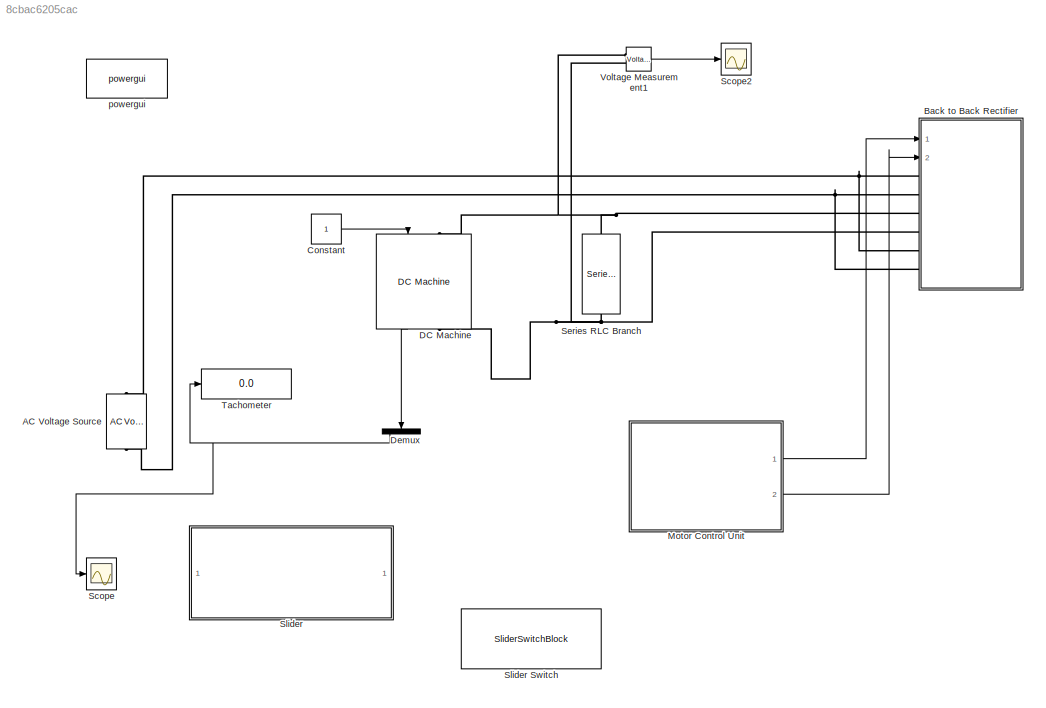
MODEL slx_8cbac6205cac
KIND model
CONFIG AbsTol = auto
CONFIG EnableMultiTasking = off
CONFIG FixedStep = 0.00001
CONFIG MaxStep = auto
CONFIG MinStep = auto
CONFIG RelTol = 1e-3
CONFIG SampleTimeConstraint = Unconstrained
CONFIG Solver = FixedStepDiscrete
CONFIG SolverName = FixedStepDiscrete
CONFIG StartTime = 0.0
CONFIG StopTime = 1000
BLOCK [Reference] AC Voltage Source  REF=powerlib/Electrical
Sources/AC Voltage Source
  Ports = [0, 0, 0, 0, 0, 1, 1]
  SourceBlock = powerlib/Electrical\nSources/AC Voltage Source
  SourceProductBaseCode = PS
  SourceProductName = Simscape Power Systems
  SourceType = AC Voltage Source
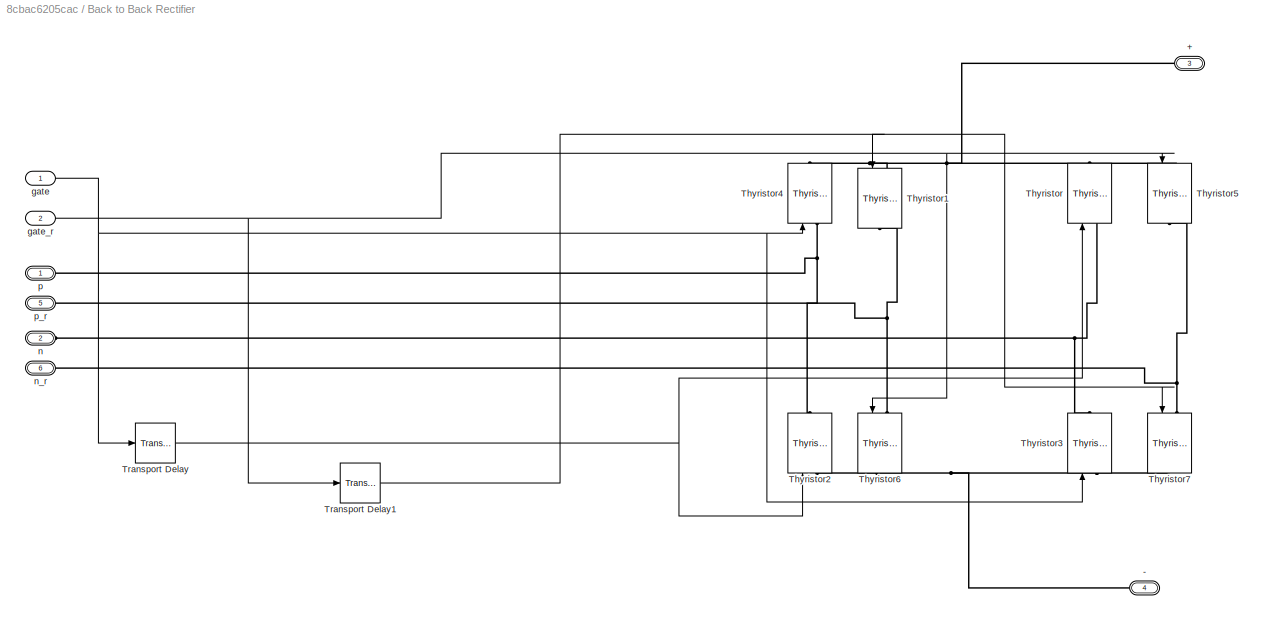
BLOCK [SubSystem] Back to Back Rectifier
  Ports = [2, 0, 0, 0, 0, 6]
  RequestExecContextInheritance = off
BLOCK [PMIOPort] Back to Back Rectifier/+
  Port = 3
  Side = Left
BLOCK [PMIOPort] Back to Back Rectifier/-
  Port = 4
  Side = Left
BLOCK [Reference] Back to Back Rectifier/Thyristor  REF=powerlib/Power
Electronics/Thyristor
  Ports = [1, 0, 0, 0, 0, 1, 1]
  SourceBlock = powerlib/Power\nElectronics/Thyristor
  SourceProductBaseCode = PS
  SourceProductName = Simscape Power Systems
  SourceType = Thyristor
BLOCK [Reference] Back to Back Rectifier/Thyristor1  REF=powerlib/Power
Electronics/Thyristor
  Ports = [1, 0, 0, 0, 0, 1, 1]
  SourceBlock = powerlib/Power\nElectronics/Thyristor
  SourceProductBaseCode = PS
  SourceProductName = Simscape Power Systems
  SourceType = Thyristor
BLOCK [Reference] Back to Back Rectifier/Thyristor2  REF=powerlib/Power
Electronics/Thyristor
  Ports = [1, 0, 0, 0, 0, 1, 1]
  SourceBlock = powerlib/Power\nElectronics/Thyristor
  SourceProductBaseCode = PS
  SourceProductName = Simscape Power Systems
  SourceType = Thyristor
BLOCK [Reference] Back to Back Rectifier/Thyristor3  REF=powerlib/Power
Electronics/Thyristor
  Ports = [1, 0, 0, 0, 0, 1, 1]
  SourceBlock = powerlib/Power\nElectronics/Thyristor
  SourceProductBaseCode = PS
  SourceProductName = Simscape Power Systems
  SourceType = Thyristor
BLOCK [Reference] Back to Back Rectifier/Thyristor4  REF=powerlib/Power
Electronics/Thyristor
  Ports = [1, 0, 0, 0, 0, 1, 1]
  SourceBlock = powerlib/Power\nElectronics/Thyristor
  SourceProductBaseCode = PS
  SourceProductName = Simscape Power Systems
  SourceType = Thyristor
BLOCK [Reference] Back to Back Rectifier/Thyristor5  REF=powerlib/Power
Electronics/Thyristor
  Ports = [1, 0, 0, 0, 0, 1, 1]
  SourceBlock = powerlib/Power\nElectronics/Thyristor
  SourceProductBaseCode = PS
  SourceProductName = Simscape Power Systems
  SourceType = Thyristor
BLOCK [Reference] Back to Back Rectifier/Thyristor6  REF=powerlib/Power
Electronics/Thyristor
  Ports = [1, 0, 0, 0, 0, 1, 1]
  SourceBlock = powerlib/Power\nElectronics/Thyristor
  SourceProductBaseCode = PS
  SourceProductName = Simscape Power Systems
  SourceType = Thyristor
BLOCK [Reference] Back to Back Rectifier/Thyristor7  REF=powerlib/Power
Electronics/Thyristor
  Ports = [1, 0, 0, 0, 0, 1, 1]
  SourceBlock = powerlib/Power\nElectronics/Thyristor
  SourceProductBaseCode = PS
  SourceProductName = Simscape Power Systems
  SourceType = Thyristor
BLOCK [TransportDelay] Back to Back Rectifier/Transport Delay
  DelayTime = 0.01
  Ports = [1, 1]
BLOCK [TransportDelay] Back to Back Rectifier/Transport Delay1
  DelayTime = 0.01
  Ports = [1, 1]
BLOCK [Inport] Back to Back Rectifier/gate
  IconDisplay = Port number
BLOCK [Inport] Back to Back Rectifier/gate_r
  IconDisplay = Port number
  Port = 2
BLOCK [PMIOPort] Back to Back Rectifier/n
  Port = 2
  Side = Left
BLOCK [PMIOPort] Back to Back Rectifier/n_r
  Port = 6
  Side = Left
BLOCK [PMIOPort] Back to Back Rectifier/p
  Side = Left
BLOCK [PMIOPort] Back to Back Rectifier/p_r
  Port = 5
  Side = Left
BLOCK [Constant] Constant
BLOCK [Reference] DC Machine  REF=powerlib/Machines/DC Machine
  Ports = [1, 1, 0, 0, 0, 1, 1]
  SourceBlock = powerlib/Machines/DC Machine
  SourceProductBaseCode = PS
  SourceProductName = Simscape Power Systems
  SourceType = DC machine
BLOCK [Demux] Demux
  DisplayOption = bar
  Ports = [1, 4]
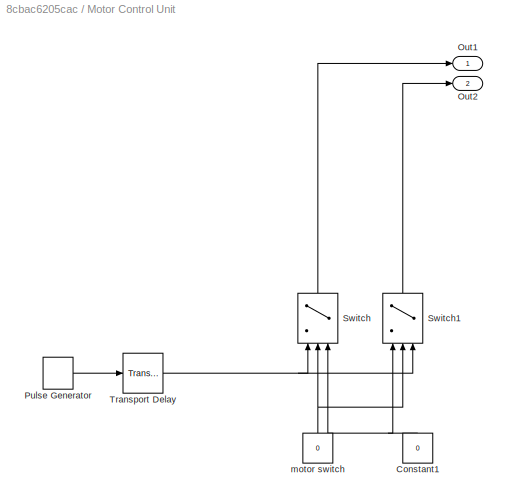
BLOCK [SubSystem] Motor Control Unit
  Ports = [0, 2]
  RequestExecContextInheritance = off
BLOCK [Constant] Motor Control Unit/Constant1
  Value = 0
BLOCK [Outport] Motor Control Unit/Out1
  IconDisplay = Port number
BLOCK [Outport] Motor Control Unit/Out2
  IconDisplay = Port number
  Port = 2
BLOCK [DiscretePulseGenerator] Motor Control Unit/Pulse Generator
  Period = 0.02
  Ports = [0, 1]
  PulseType = Time based
  PulseWidth = 10
BLOCK [Switch] Motor Control Unit/Switch
  Criteria = u2 > Threshold
  InputSameDT = off
  SaturateOnIntegerOverflow = off
BLOCK [Switch] Motor Control Unit/Switch1
  Criteria = u2 > Threshold
  InputSameDT = off
  SaturateOnIntegerOverflow = off
BLOCK [TransportDelay] Motor Control Unit/Transport Delay
  DelayTime = 0.0057777777778
  Ports = [1, 1]
BLOCK [Constant] Motor Control Unit/motor switch
  Value = 0
BLOCK [Scope] Scope
  Floating = off
  NumInputPorts = 1
  Ports = [1]
  ScopeSpecificationString = Simulink.scopes.TimeScopeBlockCfg('CurrentConfiguration', extmgr.ConfigurationSet(extmgr.Configuration('Core','General UI',true),extmgr.Configuration('Core','Source UI',true),extmgr.Configuration('Sources','WiredSimulink',true),extmgr.Configuration('Visuals','Time Domain',true,'SerializedDisplays',{struct('MinYLimReal','-176.84551','MaxYLimReal','259.12355','YLabelReal','','MinYLimMag',' 0.00000',...<+1341ch>
BLOCK [Scope] Scope2
  Floating = off
  NumInputPorts = 1
  Ports = [1]
  ScopeSpecificationString = Simulink.scopes.TimeScopeBlockCfg('CurrentConfiguration', extmgr.ConfigurationSet(extmgr.Configuration('Core','General UI',true),extmgr.Configuration('Core','Source UI',true),extmgr.Configuration('Sources','WiredSimulink',true,'DataLoggingVariableName','ScopeData2'),extmgr.Configuration('Visuals','Time Domain',true,'SerializedDisplays',{struct('MinYLimReal','-71.22917','MaxYLimReal','348.64231','Y...<+1466ch>
BLOCK [Reference] Series RLC Branch  REF=powerlib/Elements/Series RLC Branch
  Ports = [0, 0, 0, 0, 0, 1, 1]
  SourceBlock = powerlib/Elements/Series RLC Branch
  SourceProductBaseCode = PS
  SourceProductName = Simscape Power Systems
  SourceType = Series RLC Branch
BLOCK [SubSystem] Slider
  DialogController = hmiCreateDDGDialog
  IsWebBlock = on
  MaskHideContents = on
  Ports = []
  RequestExecContextInheritance = off
BLOCK [SliderSwitchBlock] Slider Switch
  WebBlockId = 141
BLOCK [Display] Tachometer
  Decimation = 1
  Ports = [1]
BLOCK [Reference] Voltage Measurement1  REF=powerlib/Measurements/Voltage Measurement
  Ports = [0, 1, 0, 0, 0, 2]
  SourceBlock = powerlib/Measurements/Voltage Measurement
  SourceProductBaseCode = PS
  SourceProductName = Simscape Power Systems
  SourceType = Voltage Measurement
  UserDataPersistent = on
BLOCK [Reference] powergui  REF=powerlib/powergui
  Ports = []
  Priority = 1
  SourceBlock = powerlib/powergui
  SourceProductBaseCode = PS
  SourceProductName = Simscape Power Systems
  SourceType = PSB option menu block
NET Back to Back Rectifier/Transport Delay1:1 -> Back to Back Rectifier/Thyristor1:1, Back to Back Rectifier/Thyristor7:1
NET Back to Back Rectifier/Transport Delay:1 -> Back to Back Rectifier/Thyristor2:1, Back to Back Rectifier/Thyristor:1
NET Back to Back Rectifier/gate:1 -> Back to Back Rectifier/Thyristor3:1, Back to Back Rectifier/Thyristor4:1, Back to Back Rectifier/Transport Delay:1
NET Back to Back Rectifier/gate_r:1 -> Back to Back Rectifier/Thyristor5:1, Back to Back Rectifier/Thyristor6:1, Back to Back Rectifier/Transport Delay1:1
LINE Constant:1 -> DC Machine:1
LINE DC Machine:1 -> Demux:1
NET Demux:1 -> Scope:1, Tachometer:1
NET Motor Control Unit/Constant1:1 -> Motor Control Unit/Switch1:1, Motor Control Unit/Switch:3
LINE Motor Control Unit/Pulse Generator:1 -> Motor Control Unit/Transport Delay:1
LINE Motor Control Unit/Switch1:1 -> Motor Control Unit/Out2:1
LINE Motor Control Unit/Switch:1 -> Motor Control Unit/Out1:1
NET Motor Control Unit/Transport Delay:1 -> Motor Control Unit/Switch1:3, Motor Control Unit/Switch:1
NET Motor Control Unit/motor switch:1 -> Motor Control Unit/Switch1:2, Motor Control Unit/Switch:2
LINE Motor Control Unit:1 -> Back to Back Rectifier:1
LINE Motor Control Unit:2 -> Back to Back Rectifier:2
LINE Voltage Measurement1:1 -> Scope2:1
PNET net1: AC Voltage Source:LConn1 -- Back to Back Rectifier:LConn2 -- Back to Back Rectifier:LConn6
PNET net2: AC Voltage Source:RConn1 -- Back to Back Rectifier:LConn1 -- Back to Back Rectifier:LConn5
PNET net3: Back to Back Rectifier/+:RConn1 -- Back to Back Rectifier/Thyristor1:LConn1 -- Back to Back Rectifier/Thyristor4:RConn1 -- Back to Back Rectifier/Thyristor5:LConn1 -- Back to Back Rectifier/Thyristor:RConn1
PNET net4: Back to Back Rectifier/-:RConn1 -- Back to Back Rectifier/Thyristor2:LConn1 -- Back to Back Rectifier/Thyristor3:LConn1 -- Back to Back Rectifier/Thyristor6:RConn1 -- Back to Back Rectifier/Thyristor7:RConn1
PNET net5: Back to Back Rectifier/Thyristor1:RConn1 -- Back to Back Rectifier/Thyristor6:LConn1 -- Back to Back Rectifier/p_r:RConn1
PNET net6: Back to Back Rectifier/Thyristor2:RConn1 -- Back to Back Rectifier/Thyristor4:LConn1 -- Back to Back Rectifier/p:RConn1
PNET net7: Back to Back Rectifier/Thyristor3:RConn1 -- Back to Back Rectifier/Thyristor:LConn1 -- Back to Back Rectifier/n:RConn1
PNET net8: Back to Back Rectifier/Thyristor5:RConn1 -- Back to Back Rectifier/Thyristor7:LConn1 -- Back to Back Rectifier/n_r:RConn1
PNET net9: Back to Back Rectifier:LConn3 -- DC Machine:LConn1 -- Series RLC Branch:LConn1 -- Voltage Measurement1:LConn1
PNET net10: Back to Back Rectifier:LConn4 -- DC Machine:RConn1 -- Series RLC Branch:RConn1 -- Voltage Measurement1:LConn2
note: NET lines group one-source signal fan-out (src -> all destinations, sorted); 1:1 wires keep LINE; PNET lines group multi-terminal physical nets as a canonical sorted terminal list (undirected conserving connections); 2-terminal nets keep the pairwise PLINE form
